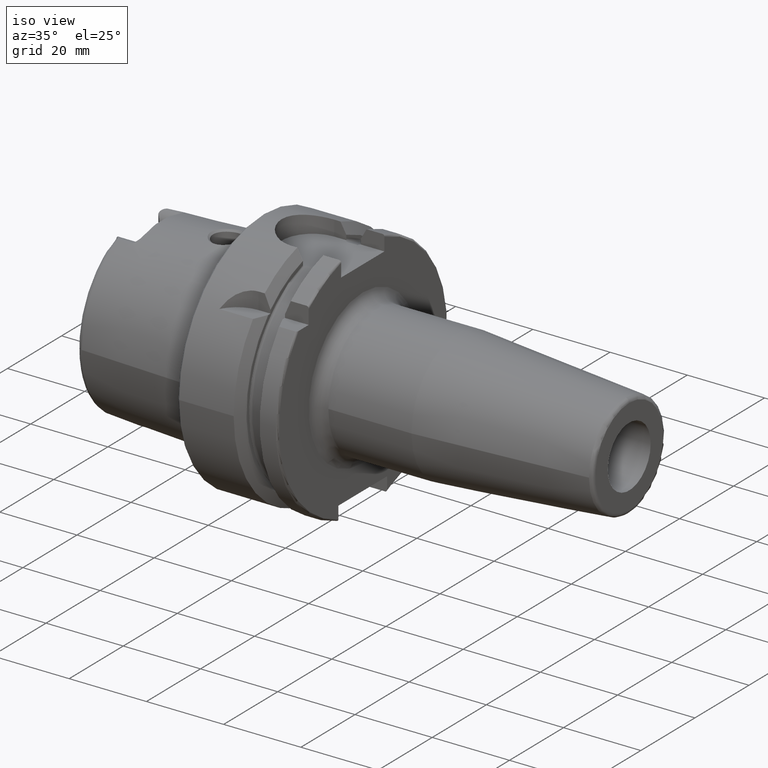
[diagram: clean part render]
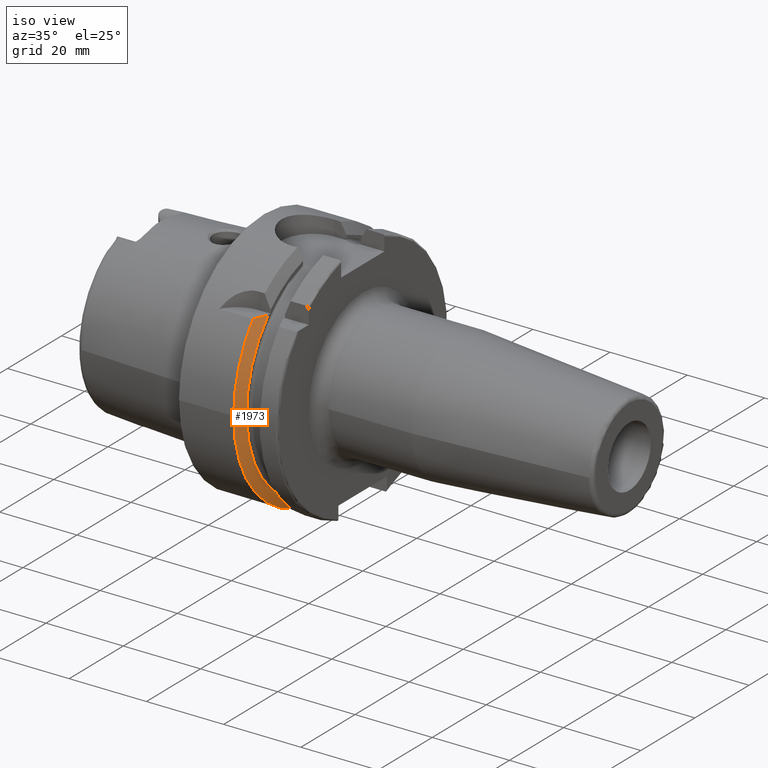
[diagram: same view with one face highlighted and labeled with its STEP entity id]
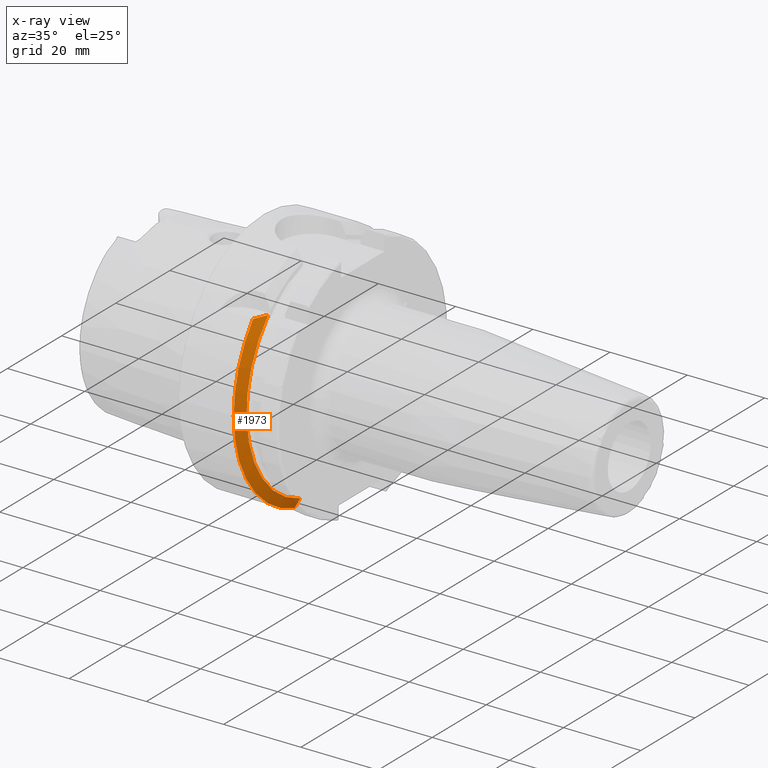
[diagram: x-ray of the same camera — body ghosted, the highlighted face saturated]
A machine part, iso view. The second image highlights one B-rep face of the part: STEP entity #1973.
The next image is the same camera in x-ray: the body ghosted, the highlighted face saturated — about 2% of this face is hidden behind the body in this view.
In plain terms, the highlighted conical surface has half-angle 60 deg.
Its self-contained STEP definition (entity closure, byte-faithful):
#18=(
BOUNDED_CURVE()
B_SPLINE_CURVE(2,(#3776,#3777,#3778),.UNSPECIFIED.,.F.,.F.)
B_SPLINE_CURVE_WITH_KNOTS((3,3),(0.,0.378858277140998),.UNSPECIFIED.)
CURVE()
GEOMETRIC_REPRESENTATION_ITEM()
RATIONAL_B_SPLINE_CURVE((1.,1.00166199353848,1.))
REPRESENTATION_ITEM('')
);
#21=(
BOUNDED_CURVE()
B_SPLINE_CURVE(2,(#3836,#3837,#3838),.UNSPECIFIED.,.F.,.F.)
B_SPLINE_CURVE_WITH_KNOTS((3,3),(0.,0.311314369989023),.UNSPECIFIED.)
CURVE()
GEOMETRIC_REPRESENTATION_ITEM()
RATIONAL_B_SPLINE_CURVE((1.,1.00102053193494,1.))
REPRESENTATION_ITEM('')
);
#248=FACE_OUTER_BOUND('',#370,.T.);
#370=EDGE_LOOP('',(#1527,#1528,#1529,#1530,#1531));
#712=CIRCLE('',#2168,28.8975952641916);
#715=CIRCLE('',#2172,31.5);
#716=CIRCLE('',#2173,31.5);
#890=VERTEX_POINT('',#3768);
#893=VERTEX_POINT('',#3774);
#900=VERTEX_POINT('',#3822);
#904=VERTEX_POINT('',#3832);
#905=VERTEX_POINT('',#3834);
#1127=EDGE_CURVE('',#890,#893,#18,.T.);
#1137=EDGE_CURVE('',#890,#900,#712,.T.);
#1142=EDGE_CURVE('',#893,#904,#715,.T.);
#1143=EDGE_CURVE('',#904,#905,#716,.T.);
#1144=EDGE_CURVE('',#905,#900,#21,.T.);
#1527=ORIENTED_EDGE('',*,*,#1127,.T.);
#1528=ORIENTED_EDGE('',*,*,#1142,.T.);
#1529=ORIENTED_EDGE('',*,*,#1143,.T.);
#1530=ORIENTED_EDGE('',*,*,#1144,.T.);
#1531=ORIENTED_EDGE('',*,*,#1137,.F.);
#1920=CONICAL_SURFACE('',#2171,30.1987976320958,1.0471975511966);
#1973=ADVANCED_FACE('',(#248),#1920,.T.);
#2168=AXIS2_PLACEMENT_3D('',#3823,#2568,#2569);
#2171=AXIS2_PLACEMENT_3D('',#3831,#2576,#2577);
#2172=AXIS2_PLACEMENT_3D('',#3833,#2578,#2579);
#2173=AXIS2_PLACEMENT_3D('',#3835,#2580,#2581);
#2568=DIRECTION('center_axis',(1.,0.,0.));
#2569=DIRECTION('ref_axis',(0.,0.,-1.));
#2576=DIRECTION('center_axis',(-1.,0.,0.));
#2577=DIRECTION('ref_axis',(0.,-0.966819045705046,-0.255462194584608));
#2578=DIRECTION('center_axis',(1.,0.,0.));
#2579=DIRECTION('ref_axis',(0.,0.,-1.));
#2580=DIRECTION('center_axis',(1.,0.,0.));
#2581=DIRECTION('ref_axis',(0.,0.,-1.));
#3768=CARTESIAN_POINT('',(16.125,-20.8583559288126,20.));
#3774=CARTESIAN_POINT('',(14.6225009252407,-24.3361870472759,20.));
#3776=CARTESIAN_POINT('Ctrl Pts',(16.125,-20.8583559288126,20.));
#3777=CARTESIAN_POINT('Ctrl Pts',(15.4315609602333,-22.5223452916163,20.));
#3778=CARTESIAN_POINT('Ctrl Pts',(14.6225009252407,-24.3361870472759,20.));
#3822=CARTESIAN_POINT('',(16.125,-9.,-27.4603534582684));
#3823=CARTESIAN_POINT('Origin',(16.125,0.,0.));
#3831=CARTESIAN_POINT('Origin',(15.3737504626203,0.,0.));
#3832=CARTESIAN_POINT('',(14.6225009252407,-31.5,-3.85763741731416E-15));
#3833=CARTESIAN_POINT('Origin',(14.6225009252407,0.,0.));
#3834=CARTESIAN_POINT('',(14.6225009252407,-9.,-30.1869176962472));
#3835=CARTESIAN_POINT('Origin',(14.6225009252407,0.,0.));
#3836=CARTESIAN_POINT('Ctrl Pts',(14.6225009252407,-9.,-30.1869176962472));
#3837=CARTESIAN_POINT('Ctrl Pts',(15.4092825889741,-9.,-28.7648946319013));
#3838=CARTESIAN_POINT('Ctrl Pts',(16.125,-9.,-27.4603534582684));